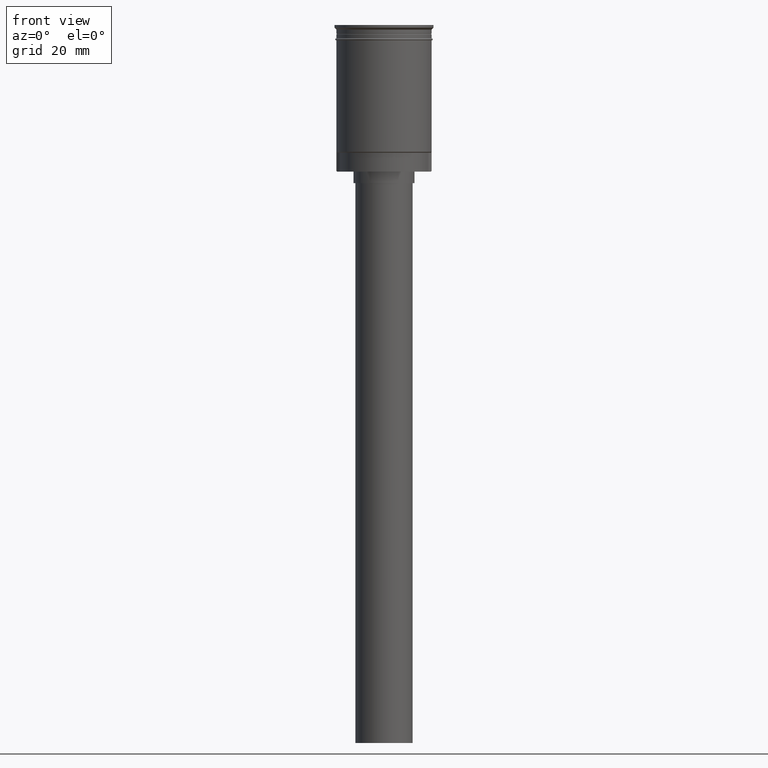
[diagram: clean part render]
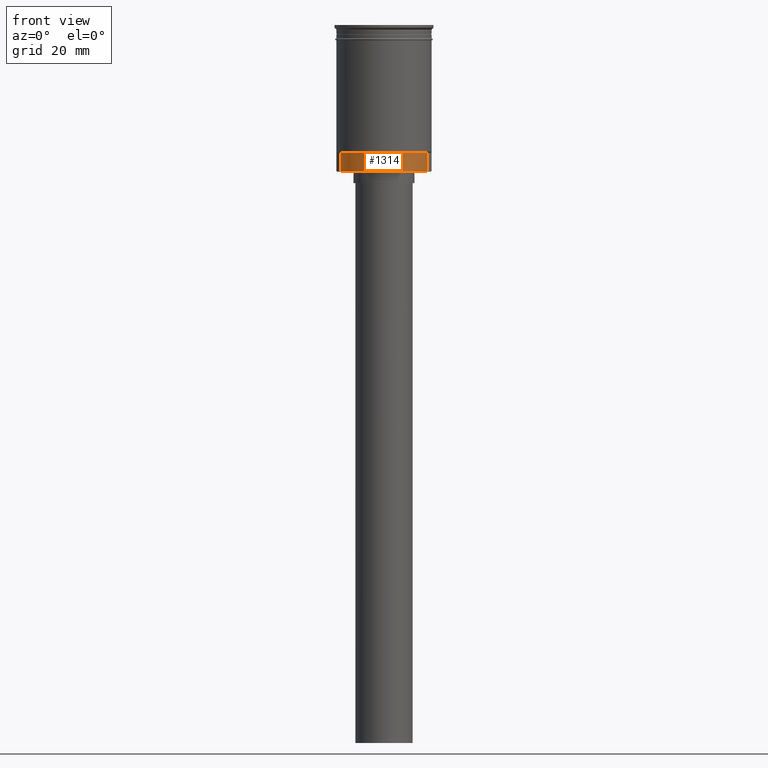
[diagram: same view with one face highlighted and labeled with its STEP entity id]
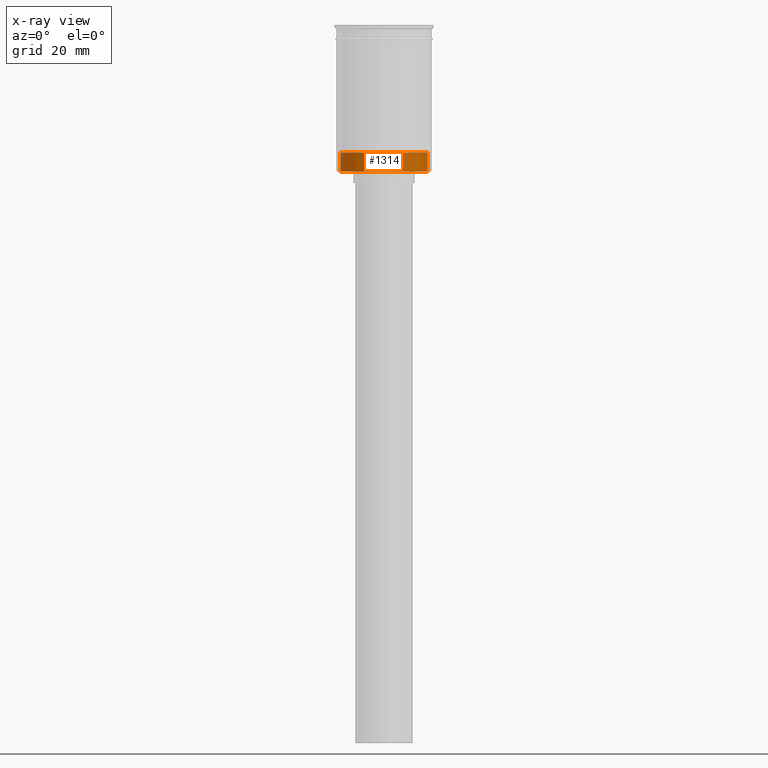
[diagram: x-ray of the same camera — body ghosted, the highlighted face saturated]
A machine part, front view. The second image highlights one B-rep face of the part: STEP entity #1314.
The next image is the same camera in x-ray: the body ghosted, the highlighted face saturated — about 0% of this face is hidden behind the body in this view.
In plain terms, the highlighted cylindrical surface (partial cylindrical patch) has radius 11.55 mm, axis along (-0, -0, 1).
Its self-contained STEP definition (entity closure, byte-faithful):
#81 = DIRECTION ( 'NONE',  ( -0.000000000000000000, -0.000000000000000000, 1.000000000000000000 ) ) ;
#159 = DIRECTION ( 'NONE',  ( -1.000000000000000000, 0.000000000000000000, 0.000000000000000000 ) ) ;
#175 = CARTESIAN_POINT ( 'NONE',  ( 11.39766701030927543, -1.869675566002708900, -38.50000000000000000 ) ) ;
#184 = DIRECTION ( 'NONE',  ( 0.000000000000000000, 0.000000000000000000, -1.000000000000000000 ) ) ;
#209 = CARTESIAN_POINT ( 'NONE',  ( -11.39766701030927543, -1.869675566002713563, -38.50000000000000000 ) ) ;
#230 = EDGE_CURVE ( 'NONE', #1552, #826, #316, .T. ) ;
#232 = ORIENTED_EDGE ( 'NONE', *, *, #1255, .T. ) ;
#260 = CARTESIAN_POINT ( 'NONE',  ( 0.000000000000000000, 0.000000000000000000, -38.50000000000000000 ) ) ;
#316 = LINE ( 'NONE', #1031, #917 ) ;
#359 = CARTESIAN_POINT ( 'NONE',  ( -11.39766701030927543, -1.869675566002713563, -38.50000000000000000 ) ) ;
#372 = DIRECTION ( 'NONE',  ( -0.000000000000000000, -0.000000000000000000, 1.000000000000000000 ) ) ;
#397 = VERTEX_POINT ( 'NONE', #209 ) ;
#440 = DIRECTION ( 'NONE',  ( 0.000000000000000000, 0.000000000000000000, -1.000000000000000000 ) ) ;
#448 = CIRCLE ( 'NONE', #708, 11.54999999999999716 ) ;
#485 = DIRECTION ( 'NONE',  ( 1.000000000000000000, 0.000000000000000000, 0.000000000000000000 ) ) ;
#578 = VECTOR ( 'NONE', #81, 1000.000000000000000 ) ;
#593 = CARTESIAN_POINT ( 'NONE',  ( -11.39766701030927543, -1.869675566002713563, -33.50000000000000000 ) ) ;
#707 = DIRECTION ( 'NONE',  ( -1.000000000000000000, 0.000000000000000000, 0.000000000000000000 ) ) ;
#708 = AXIS2_PLACEMENT_3D ( 'NONE', #838, #440, #707 ) ;
#758 = CYLINDRICAL_SURFACE ( 'NONE', #1561, 11.54999999999999716 ) ;
#801 = ORIENTED_EDGE ( 'NONE', *, *, #1218, .F. ) ;
#812 = AXIS2_PLACEMENT_3D ( 'NONE', #1530, #184, #159 ) ;
#826 = VERTEX_POINT ( 'NONE', #912 ) ;
#838 = CARTESIAN_POINT ( 'NONE',  ( 0.000000000000000000, 0.000000000000000000, -33.50000000000000000 ) ) ;
#912 = CARTESIAN_POINT ( 'NONE',  ( 11.39766701030927543, -1.869675566002708900, -33.50000000000000000 ) ) ;
#917 = VECTOR ( 'NONE', #1415, 1000.000000000000000 ) ;
#932 = ORIENTED_EDGE ( 'NONE', *, *, #1483, .F. ) ;
#999 = CIRCLE ( 'NONE', #812, 11.54999999999999716 ) ;
#1031 = CARTESIAN_POINT ( 'NONE',  ( 11.39766701030927543, -1.869675566002708900, -38.50000000000000000 ) ) ;
#1084 = VERTEX_POINT ( 'NONE', #593 ) ;
#1153 = EDGE_LOOP ( 'NONE', ( #232, #801, #932, #1469 ) ) ;
#1218 = EDGE_CURVE ( 'NONE', #397, #1084, #1575, .T. ) ;
#1255 = EDGE_CURVE ( 'NONE', #826, #1084, #448, .T. ) ;
#1314 = ADVANCED_FACE ( 'NONE', ( #1595 ), #758, .T. ) ;
#1415 = DIRECTION ( 'NONE',  ( -0.000000000000000000, -0.000000000000000000, 1.000000000000000000 ) ) ;
#1469 = ORIENTED_EDGE ( 'NONE', *, *, #230, .T. ) ;
#1483 = EDGE_CURVE ( 'NONE', #1552, #397, #999, .T. ) ;
#1530 = CARTESIAN_POINT ( 'NONE',  ( 0.000000000000000000, 0.000000000000000000, -38.50000000000000000 ) ) ;
#1552 = VERTEX_POINT ( 'NONE', #175 ) ;
#1561 = AXIS2_PLACEMENT_3D ( 'NONE', #260, #372, #485 ) ;
#1575 = LINE ( 'NONE', #359, #578 ) ;
#1595 = FACE_OUTER_BOUND ( 'NONE', #1153, .T. ) ;